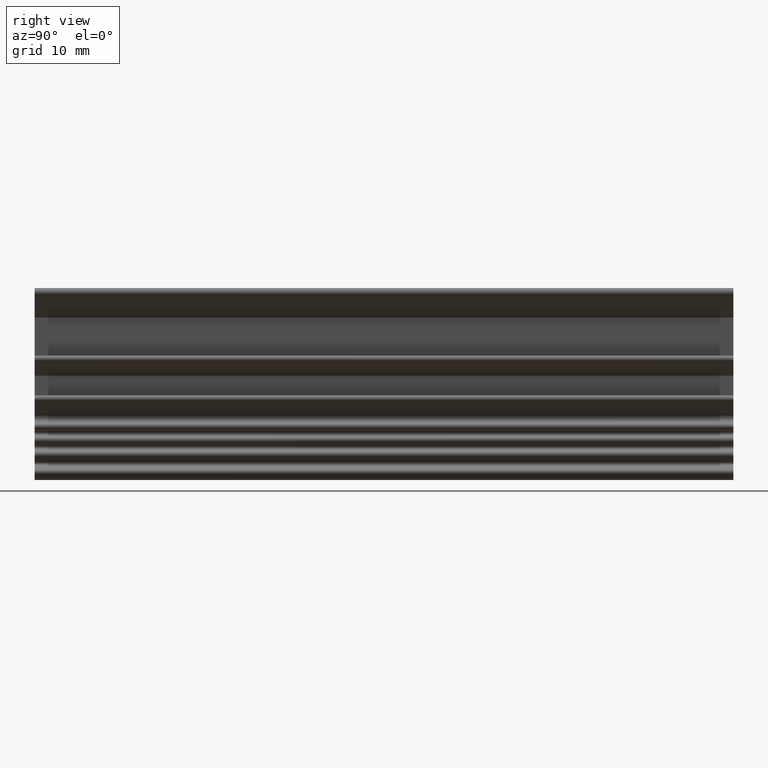
[diagram: clean part render]
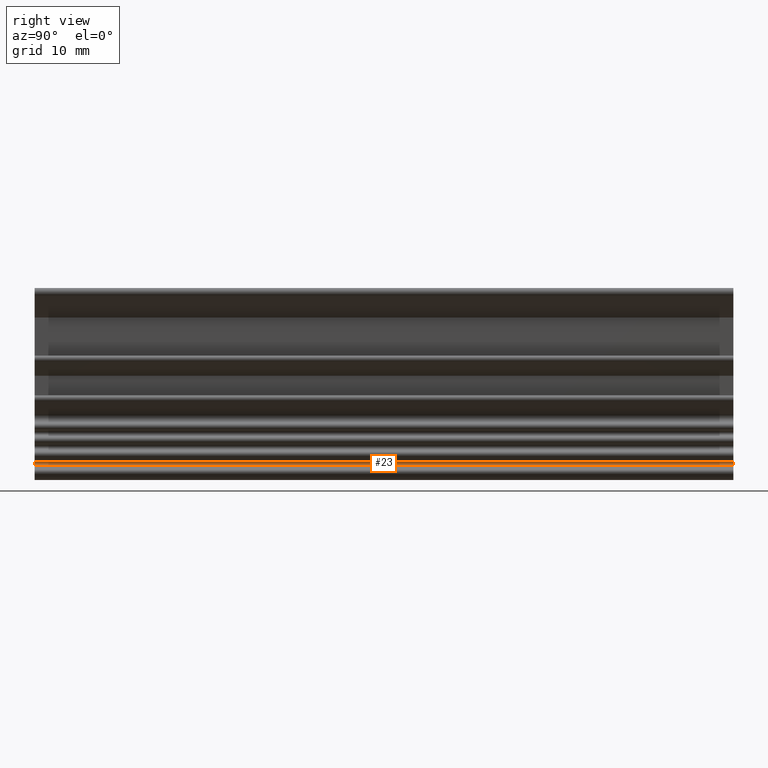
[diagram: same view with one face highlighted and labeled with its STEP entity id]
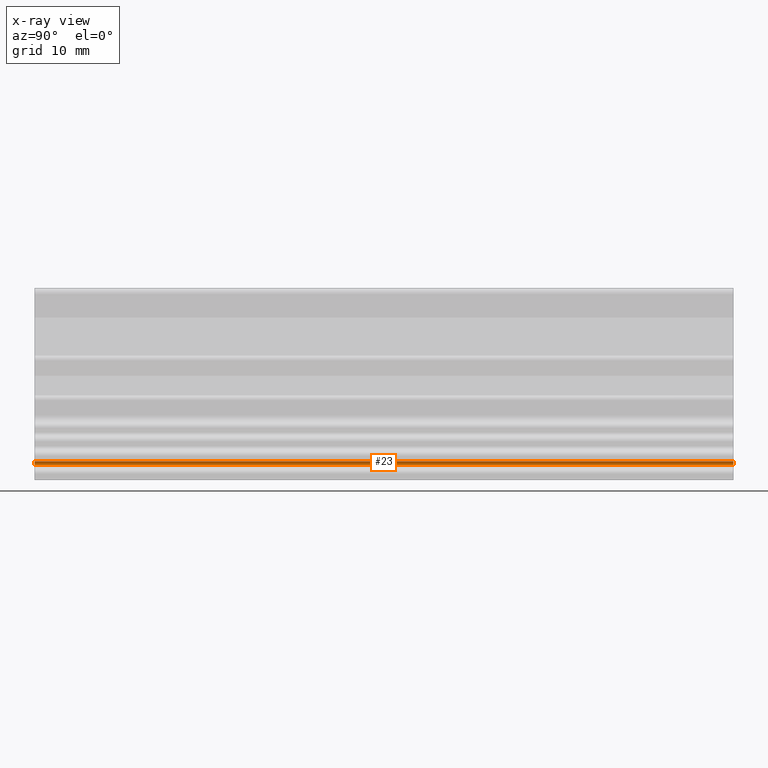
[diagram: x-ray of the same camera — body ghosted, the highlighted face saturated]
A machine part, right view. The second image highlights one B-rep face of the part: STEP entity #23.
The next image is the same camera in x-ray: the body ghosted, the highlighted face saturated — about 0% of this face is hidden behind the body in this view.
In plain terms, the highlighted cylindrical surface (edge-blend (fillet) strip) has radius 0.3 mm, axis along (0, 1, 0).
Its self-contained STEP definition (entity closure, byte-faithful):
#23 = ADVANCED_FACE ( 'NONE', ( #2078 ), #2132, .F. ) ;
#96 = AXIS2_PLACEMENT_3D ( 'NONE', #1615, #1604, #1603 ) ;
#99 = AXIS2_PLACEMENT_3D ( 'NONE', #1012, #1025, #1026 ) ;
#196 = AXIS2_PLACEMENT_3D ( 'NONE', #1981, #1972, #1971 ) ;
#290 = EDGE_LOOP ( 'NONE', ( #498, #499, #500, #501 ) ) ;
#498 = ORIENTED_EDGE ( 'NONE', *, *, #689, .T. ) ;
#499 = ORIENTED_EDGE ( 'NONE', *, *, #597, .F. ) ;
#500 = ORIENTED_EDGE ( 'NONE', *, *, #654, .F. ) ;
#501 = ORIENTED_EDGE ( 'NONE', *, *, #683, .F. ) ;
#597 = EDGE_CURVE ( 'NONE', #1160, #960, #1858, .T. ) ;
#654 = EDGE_CURVE ( 'NONE', #1294, #1160, #1860, .T. ) ;
#683 = EDGE_CURVE ( 'NONE', #1270, #1294, #1794, .T. ) ;
#689 = EDGE_CURVE ( 'NONE', #1270, #960, #1712, .T. ) ;
#960 = VERTEX_POINT ( 'NONE', #1567 ) ;
#1012 = CARTESIAN_POINT ( 'NONE',  ( 0.5539356199794619500, 80.00000000000000000, 1.908952344696470000 ) ) ;
#1025 = DIRECTION ( 'NONE',  ( 0.0000000000000000000, 1.000000000000000000, 0.0000000000000000000 ) ) ;
#1026 = DIRECTION ( 'NONE',  ( 0.0000000000000000000, 0.0000000000000000000, 1.000000000000000000 ) ) ;
#1160 = VERTEX_POINT ( 'NONE', #1538 ) ;
#1270 = VERTEX_POINT ( 'NONE', #1518 ) ;
#1294 = VERTEX_POINT ( 'NONE', #1496 ) ;
#1496 = CARTESIAN_POINT ( 'NONE',  ( 0.3229785511996716700, 0.0000000000000000000, 2.100417308542742200 ) ) ;
#1518 = CARTESIAN_POINT ( 'NONE',  ( 0.3757642862479912400, 0.0000000000000000000, 1.667591668868035700 ) ) ;
#1538 = CARTESIAN_POINT ( 'NONE',  ( 0.3229785511996716700, 80.00000000000000000, 2.100417308542742200 ) ) ;
#1567 = CARTESIAN_POINT ( 'NONE',  ( 0.3757642862479912400, 80.00000000000000000, 1.667591668868035700 ) ) ;
#1593 = DIRECTION ( 'NONE',  ( 0.0000000000000000000, 1.000000000000000000, 0.0000000000000000000 ) ) ;
#1600 = CARTESIAN_POINT ( 'NONE',  ( 0.3757642862479884100, 80.00000000000000000, 1.667591668868031900 ) ) ;
#1603 = DIRECTION ( 'NONE',  ( 0.0000000000000000000, 0.0000000000000000000, 1.000000000000000000 ) ) ;
#1604 = DIRECTION ( 'NONE',  ( 0.0000000000000000000, 1.000000000000000000, 0.0000000000000000000 ) ) ;
#1615 = CARTESIAN_POINT ( 'NONE',  ( 0.5539356199794619500, 0.0000000000000000000, 1.908952344696470000 ) ) ;
#1642 = DIRECTION ( 'NONE',  ( 0.0000000000000000000, 1.000000000000000000, 0.0000000000000000000 ) ) ;
#1675 = CARTESIAN_POINT ( 'NONE',  ( 0.3229785511996807700, 80.00000000000000000, 2.100417308542734700 ) ) ;
#1712 = LINE ( 'NONE', #1600, #1801 ) ;
#1794 = CIRCLE ( 'NONE', #96, 0.2999999999999999300 ) ;
#1801 = VECTOR ( 'NONE', #1593, 1000.000000000000000 ) ;
#1858 = CIRCLE ( 'NONE', #196, 0.2999999999999999300 ) ;
#1860 = LINE ( 'NONE', #1675, #1913 ) ;
#1913 = VECTOR ( 'NONE', #1642, 1000.000000000000000 ) ;
#1971 = DIRECTION ( 'NONE',  ( 7.228014483236697500E-016, 0.0000000000000000000, 1.000000000000000000 ) ) ;
#1972 = DIRECTION ( 'NONE',  ( -0.0000000000000000000, -1.000000000000000000, -0.0000000000000000000 ) ) ;
#1981 = CARTESIAN_POINT ( 'NONE',  ( 0.5539356199794619500, 80.00000000000000000, 1.908952344696470000 ) ) ;
#2078 = FACE_OUTER_BOUND ( 'NONE', #290, .T. ) ;
#2132 = CYLINDRICAL_SURFACE ( 'NONE', #99, 0.2999999999999999300 ) ;